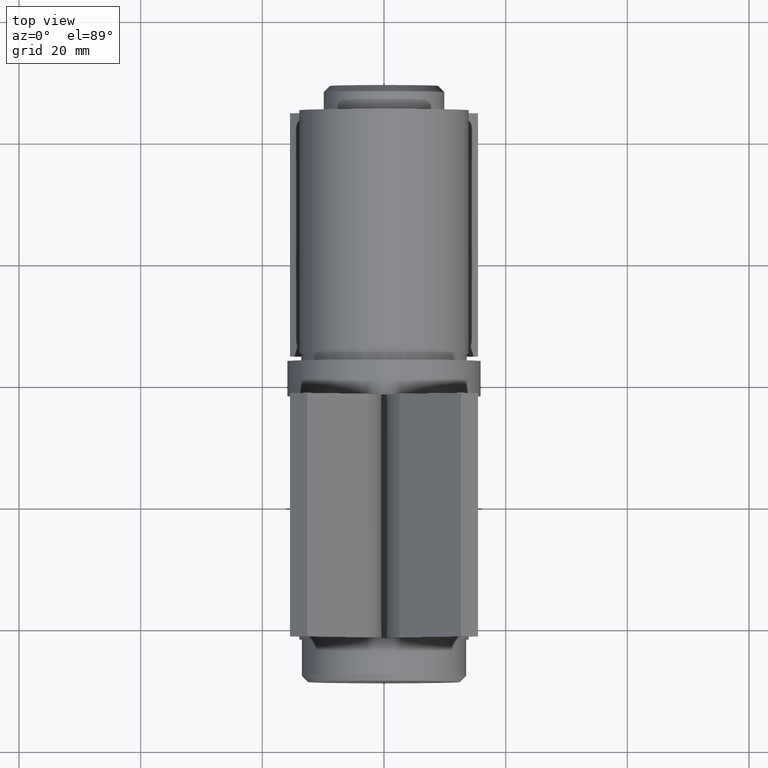
[diagram: clean part render]
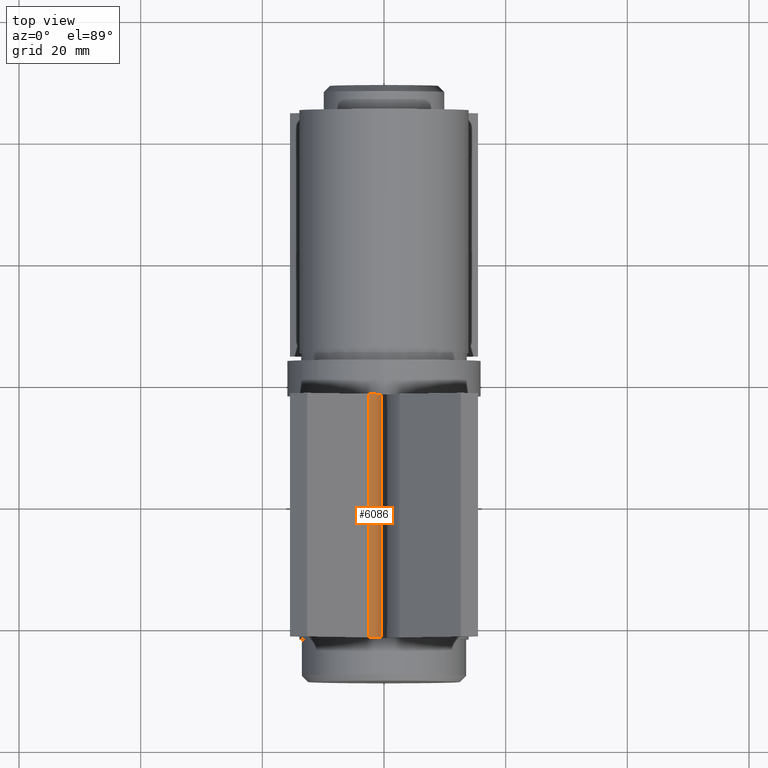
[diagram: same view with one face highlighted and labeled with its STEP entity id]
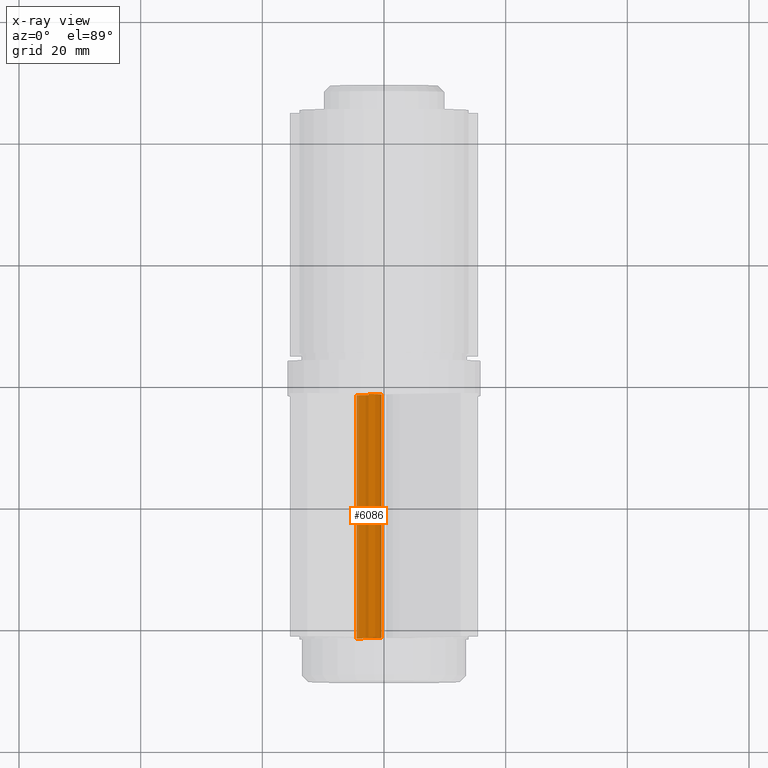
[diagram: x-ray of the same camera — body ghosted, the highlighted face saturated]
A machine part, top view. The second image highlights one B-rep face of the part: STEP entity #6086.
The next image is the same camera in x-ray: the body ghosted, the highlighted face saturated — about 10% of this face is hidden behind the body in this view.
In plain terms, the highlighted cylindrical surface (partial cylindrical patch) has radius 7.5 mm, axis along (0, -1, 0).
Its self-contained STEP definition (entity closure, byte-faithful):
#207 = EDGE_CURVE ( 'NONE', #11763, #3621, #5210, .T. ) ;
#215 = VERTEX_POINT ( 'NONE', #8385 ) ;
#311 = CARTESIAN_POINT ( 'NONE',  ( 7.858252827944821384, -20.00000000000000355, -15.63642742099687410 ) ) ;
#370 = ORIENTED_EDGE ( 'NONE', *, *, #1505, .F. ) ;
#410 = DIRECTION ( 'NONE',  ( -0.000000000000000000, -1.000000000000000000, 0.000000000000000000 ) ) ;
#555 = AXIS2_PLACEMENT_3D ( 'NONE', #311, #10810, #7020 ) ;
#1054 = AXIS2_PLACEMENT_3D ( 'NONE', #11777, #3148, #2044 ) ;
#1132 = LINE ( 'NONE', #4188, #10005 ) ;
#1505 = EDGE_CURVE ( 'NONE', #11763, #215, #6258, .T. ) ;
#1599 = DIRECTION ( 'NONE',  ( -0.000000000000000000, -1.000000000000000000, 0.000000000000000000 ) ) ;
#1817 = EDGE_LOOP ( 'NONE', ( #4909, #8877, #370, #6816 ) ) ;
#2044 = DIRECTION ( 'NONE',  ( 0.000000000000000000, 0.000000000000000000, -1.000000000000000000 ) ) ;
#2227 = DIRECTION ( 'NONE',  ( 0.000000000000000000, 0.000000000000000000, -1.000000000000000000 ) ) ;
#3035 = EDGE_CURVE ( 'NONE', #215, #8044, #1132, .T. ) ;
#3148 = DIRECTION ( 'NONE',  ( 0.000000000000000000, 1.000000000000000000, 0.000000000000000000 ) ) ;
#3284 = VECTOR ( 'NONE', #1599, 1000.000000000000000 ) ;
#3621 = VERTEX_POINT ( 'NONE', #5403 ) ;
#4188 = CARTESIAN_POINT ( 'NONE',  ( 4.490430187397040918, 19.99999999999998934, -8.935101383426772514 ) ) ;
#4909 = ORIENTED_EDGE ( 'NONE', *, *, #8345, .T. ) ;
#5106 = DIRECTION ( 'NONE',  ( -0.000000000000000000, -1.000000000000000000, 0.000000000000000000 ) ) ;
#5210 = LINE ( 'NONE', #7424, #3284 ) ;
#5372 = AXIS2_PLACEMENT_3D ( 'NONE', #8976, #410, #2227 ) ;
#5403 = CARTESIAN_POINT ( 'NONE',  ( 2.554951969045667237, -20.00000000000000355, -20.93972827989598784 ) ) ;
#5961 = CARTESIAN_POINT ( 'NONE',  ( 2.554951969045667237, 19.99999999999998934, -20.93972827989598784 ) ) ;
#6086 = ADVANCED_FACE ( 'NONE', ( #10537 ), #7361, .T. ) ;
#6258 = CIRCLE ( 'NONE', #1054, 7.500000000000069278 ) ;
#6816 = ORIENTED_EDGE ( 'NONE', *, *, #207, .T. ) ;
#6866 = CIRCLE ( 'NONE', #555, 7.500000000000069278 ) ;
#7020 = DIRECTION ( 'NONE',  ( 0.000000000000000000, 0.000000000000000000, -1.000000000000000000 ) ) ;
#7361 = CYLINDRICAL_SURFACE ( 'NONE', #5372, 7.500000000000069278 ) ;
#7424 = CARTESIAN_POINT ( 'NONE',  ( 2.554951969045667237, 19.99999999999998934, -20.93972827989598784 ) ) ;
#8044 = VERTEX_POINT ( 'NONE', #8628 ) ;
#8345 = EDGE_CURVE ( 'NONE', #3621, #8044, #6866, .T. ) ;
#8385 = CARTESIAN_POINT ( 'NONE',  ( 4.490430187397040918, 19.99999999999998934, -8.935101383426772514 ) ) ;
#8628 = CARTESIAN_POINT ( 'NONE',  ( 4.490430187397040918, -20.00000000000000355, -8.935101383426772514 ) ) ;
#8877 = ORIENTED_EDGE ( 'NONE', *, *, #3035, .F. ) ;
#8976 = CARTESIAN_POINT ( 'NONE',  ( 7.858252827944821384, 19.99999999999998934, -15.63642742099687410 ) ) ;
#10005 = VECTOR ( 'NONE', #5106, 1000.000000000000000 ) ;
#10537 = FACE_OUTER_BOUND ( 'NONE', #1817, .T. ) ;
#10810 = DIRECTION ( 'NONE',  ( 0.000000000000000000, 1.000000000000000000, 0.000000000000000000 ) ) ;
#11763 = VERTEX_POINT ( 'NONE', #5961 ) ;
#11777 = CARTESIAN_POINT ( 'NONE',  ( 7.858252827944821384, 19.99999999999998934, -15.63642742099687410 ) ) ;